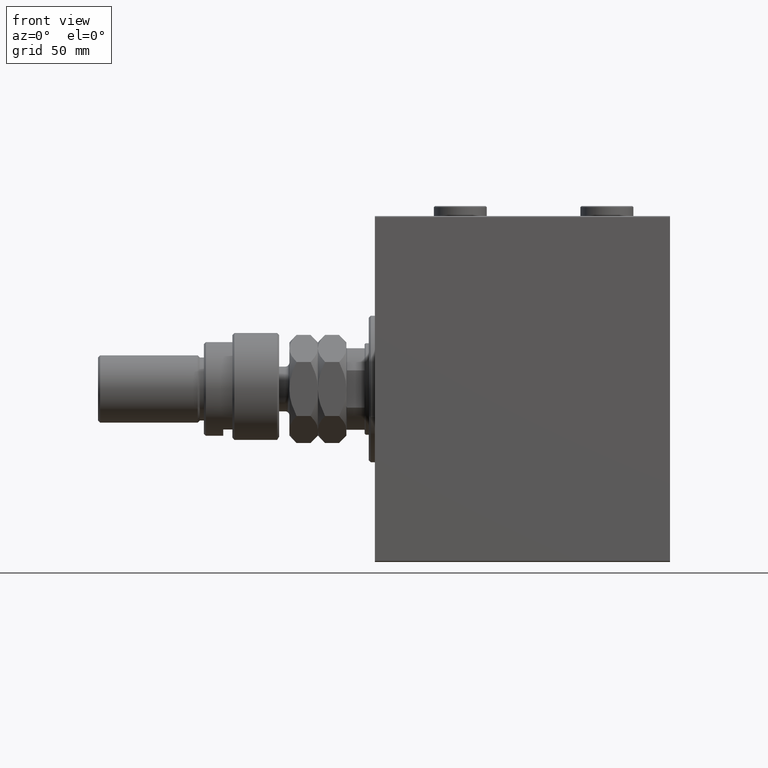
[diagram: clean part render]
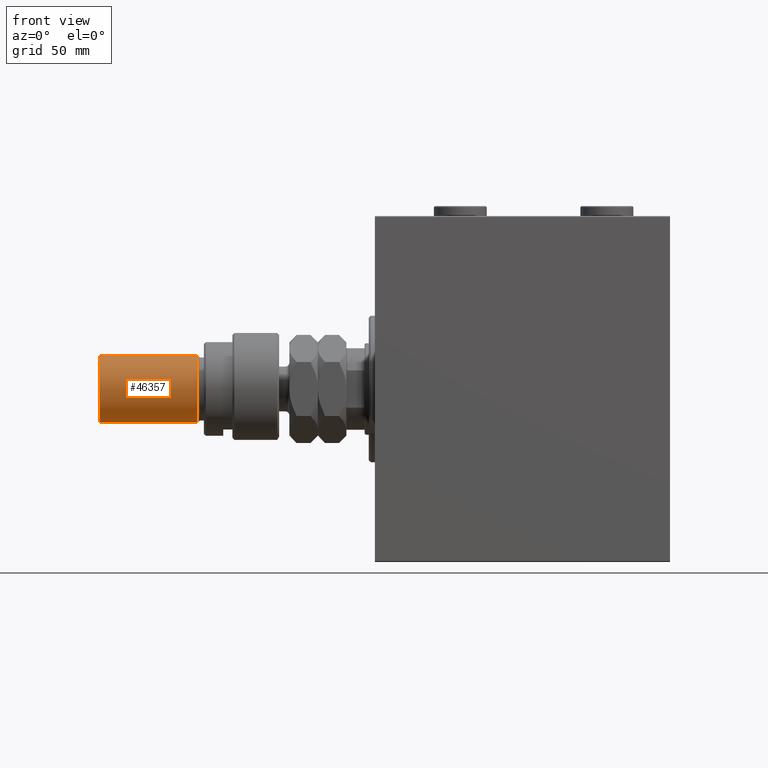
[diagram: same view with one face highlighted and labeled with its STEP entity id]
A machine part, front view. The second image highlights one B-rep face of the part: STEP entity #46357.
In plain terms, the highlighted cylindrical surface (edge-blend (fillet) strip) has radius 16.5 mm, axis along (1, -0, -0).
Its self-contained STEP definition (entity closure, byte-faithful):
#791 = DIRECTION ( 'NONE',  ( -0.000000000000000000, -0.000000000000000000, -1.000000000000000000 ) ) ;
#1524 = ORIENTED_EDGE ( 'NONE', *, *, #22642, .T. ) ;
#1694 = CARTESIAN_POINT ( 'NONE',  ( 0.000000000000000000, 0.000000000000000000, 39.99999999999998579 ) ) ;
#2110 = CARTESIAN_POINT ( 'NONE',  ( 0.000000000000000000, 0.000000000000000000, 89.00000000000000000 ) ) ;
#4673 = VECTOR ( 'NONE', #22635, 1000.000000000000000 ) ;
#5058 = DIRECTION ( 'NONE',  ( -0.000000000000000000, -0.000000000000000000, -1.000000000000000000 ) ) ;
#5834 = DIRECTION ( 'NONE',  ( 1.000000000000000000, 0.000000000000000000, 0.000000000000000000 ) ) ;
#8809 = CARTESIAN_POINT ( 'NONE',  ( -16.50000000000000000, 0.000000000000000000, 89.00000000000000000 ) ) ;
#8814 = CARTESIAN_POINT ( 'NONE',  ( 16.50000000000000000, 2.020667218593133100E-15, 88.00000000000001421 ) ) ;
#8940 = FACE_OUTER_BOUND ( 'NONE', #43383, .T. ) ;
#10661 = CARTESIAN_POINT ( 'NONE',  ( -16.50000000000000000, 0.000000000000000000, 88.00000000000001421 ) ) ;
#11463 = LINE ( 'NONE', #41085, #4673 ) ;
#14402 = DIRECTION ( 'NONE',  ( 0.000000000000000000, 0.000000000000000000, -1.000000000000000000 ) ) ;
#14935 = VERTEX_POINT ( 'NONE', #8814 ) ;
#17009 = VERTEX_POINT ( 'NONE', #21498 ) ;
#17556 = DIRECTION ( 'NONE',  ( 1.000000000000000000, 0.000000000000000000, 0.000000000000000000 ) ) ;
#17741 = ORIENTED_EDGE ( 'NONE', *, *, #48073, .F. ) ;
#20344 = CYLINDRICAL_SURFACE ( 'NONE', #33274, 16.50000000000000000 ) ;
#21498 = CARTESIAN_POINT ( 'NONE',  ( 16.50000000000000000, 2.020667218593133100E-15, 39.99999999999998579 ) ) ;
#21779 = ORIENTED_EDGE ( 'NONE', *, *, #43014, .T. ) ;
#22635 = DIRECTION ( 'NONE',  ( -0.000000000000000000, -0.000000000000000000, -1.000000000000000000 ) ) ;
#22642 = EDGE_CURVE ( 'NONE', #45156, #26787, #34303, .T. ) ;
#23450 = CARTESIAN_POINT ( 'NONE',  ( -16.50000000000000000, 0.000000000000000000, 39.99999999999998579 ) ) ;
#24184 = CIRCLE ( 'NONE', #44365, 16.50000000000000000 ) ;
#24645 = EDGE_CURVE ( 'NONE', #14935, #45156, #24184, .T. ) ;
#25713 = VECTOR ( 'NONE', #791, 1000.000000000000000 ) ;
#26787 = VERTEX_POINT ( 'NONE', #23450 ) ;
#29428 = CARTESIAN_POINT ( 'NONE',  ( 0.000000000000000000, 0.000000000000000000, 88.00000000000001421 ) ) ;
#30818 = AXIS2_PLACEMENT_3D ( 'NONE', #1694, #39091, #5834 ) ;
#31022 = DIRECTION ( 'NONE',  ( -1.000000000000000000, 0.000000000000000000, 0.000000000000000000 ) ) ;
#33274 = AXIS2_PLACEMENT_3D ( 'NONE', #2110, #5058, #31022 ) ;
#34303 = LINE ( 'NONE', #8809, #25713 ) ;
#39091 = DIRECTION ( 'NONE',  ( -0.000000000000000000, -0.000000000000000000, 1.000000000000000000 ) ) ;
#41085 = CARTESIAN_POINT ( 'NONE',  ( 16.50000000000000000, 2.020667218593133100E-15, 89.00000000000000000 ) ) ;
#43014 = EDGE_CURVE ( 'NONE', #26787, #17009, #47917, .T. ) ;
#43383 = EDGE_LOOP ( 'NONE', ( #17741, #45350, #1524, #21779 ) ) ;
#44365 = AXIS2_PLACEMENT_3D ( 'NONE', #29428, #14402, #17556 ) ;
#45156 = VERTEX_POINT ( 'NONE', #10661 ) ;
#45350 = ORIENTED_EDGE ( 'NONE', *, *, #24645, .T. ) ;
#46357 = ADVANCED_FACE ( 'NONE', ( #8940 ), #20344, .T. ) ;
#47917 = CIRCLE ( 'NONE', #30818, 16.50000000000000000 ) ;
#48073 = EDGE_CURVE ( 'NONE', #14935, #17009, #11463, .T. ) ;